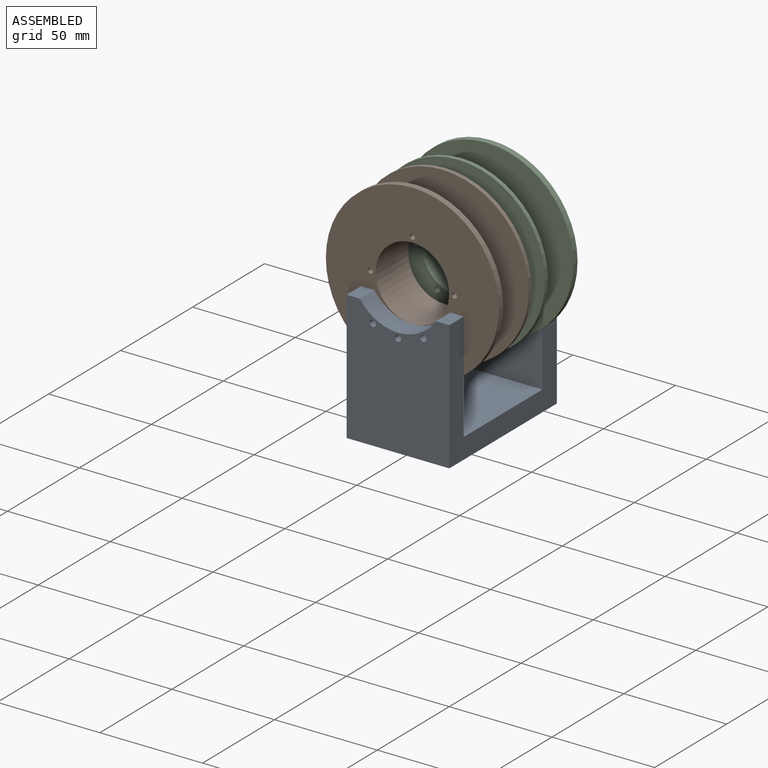
[diagram: assembled view]
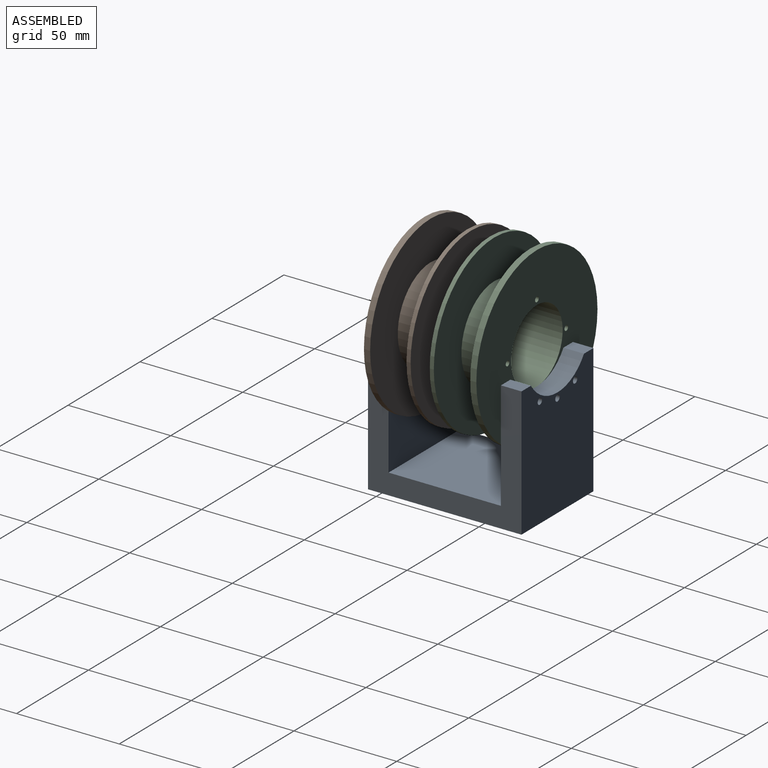
[diagram: assembled view, second angle]
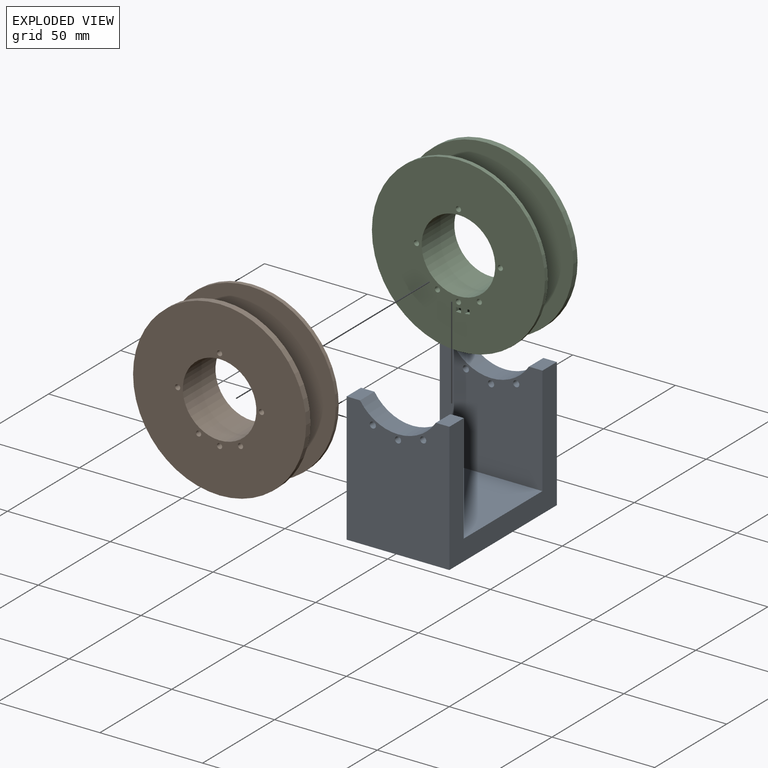
[diagram: exploded view]
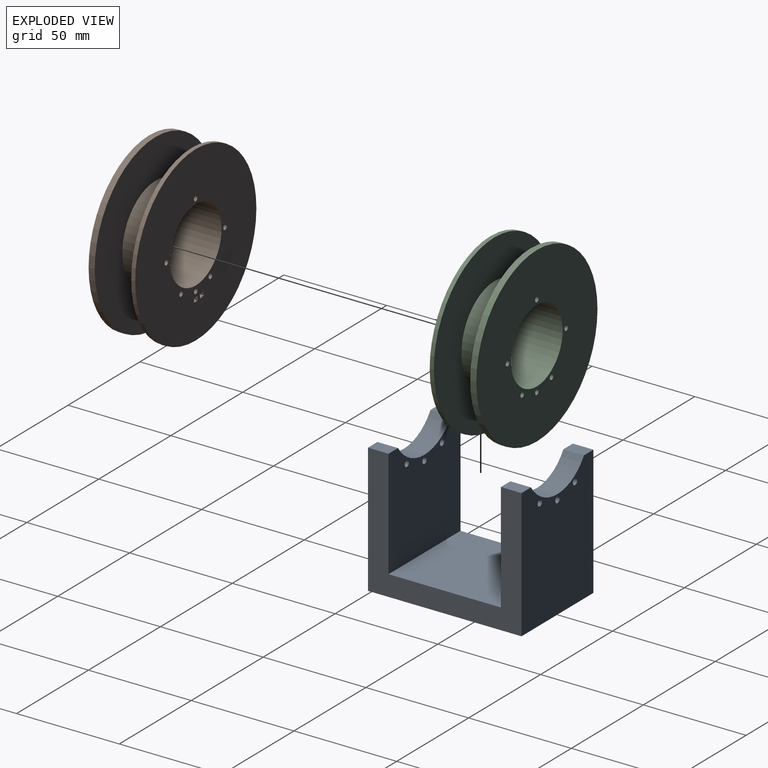
[diagram: exploded view, second angle]
ASSEMBLY  parts=3 mates=2
PART A: 20 faces, bbox 50x74.7x63 mm
  f0: cylinder r=22mm len=36.88mm, axis (0,1,0), area 437.3mm2, adj f1,f2,f7,f9
  f1: plane 63x50mm, normal (0,-1,0), area 2869mm2, adj f0,f3,f4,f5,f6,f7,f8,f9
  f2: plane 53x50mm, normal (0,1,0), area 2369mm2, adj f0,f3,f4,f5,f6,f7,f8,f9
  f3: cylinder r=1.5mm len=10mm, axis (0,1,0), area 94.2mm2, adj f1,f2
  f4: cylinder r=1.5mm len=10mm, axis (0,1,0), area 94.2mm2, adj f1,f2
  f5: cylinder r=1.5mm len=10mm, axis (0,1,0), area 94.2mm2, adj f1,f2
  f6: plane 74.7x63mm, normal (1,0,0), area 1807mm2, adj f1,f2,f7,f11,f12,f16,f18,f19
  f7: plane 10x6.56mm, normal (0,0,1), area 65.6mm2, adj f0,f1,f2,f6
  f8: plane 74.7x63mm, normal (-1,0,0), area 1807mm2, adj f1,f2,f9,f11,f12,f17,f18,f19
  f9: plane 10x6.56mm, normal (0,0,1), area 65.6mm2, adj f0,f1,f2,f8
  f10: cylinder r=22mm len=36.88mm, axis (0,-1,0), area 437.3mm2, adj f11,f12,f16,f17
  f11: plane 63x50mm, normal (0,1,0), area 2869mm2, adj f6,f8,f10,f13,f14,f15,f16,f17
  f12: plane 53x50mm, normal (0,-1,0), area 2369mm2, adj f6,f8,f10,f13,f14,f15,f16,f17
  f13: cylinder r=1.5mm len=10mm, axis (0,-1,0), area 94.2mm2, adj f11,f12
  f14: cylinder r=1.5mm len=10mm, axis (0,-1,0), area 94.2mm2, adj f11,f12
  f15: cylinder r=1.5mm len=10mm, axis (0,-1,0), area 94.2mm2, adj f11,f12
  f16: plane 10x6.56mm, normal (0,0,1), area 65.6mm2, adj f6,f10,f11,f12
  f17: plane 10x6.56mm, normal (0,0,1), area 65.6mm2, adj f8,f10,f11,f12
  f18: plane 54.7x50mm, normal (0,0,1), area 2735mm2, adj f2,f6,f8,f12
  f19: plane 74.7x50mm, normal (0,0,-1), area 3735mm2, adj f1,f6,f8,f11
PART B: 22 faces, bbox 84.2x22.7x84.2 mm
  f0: cylinder r=42.1mm len=84.2mm, axis (0,1,0), area 529mm2, adj f1,f19
  f1: plane 84.2x84.2mm, normal (0,1,0), area 4522.1mm2, adj f0,f3,f5,f6,f7,f8,f9,f10
  f2: plane 84.2x84.2mm, normal (0,-1,0), area 4532.1mm2, adj f3,f4,f5,f6,f7,f8,f9,f10
  f3: cylinder r=17.9mm len=35.8mm, axis (0,1,0), area 2553mm2, adj f1,f2
  f4: cylinder r=42.1mm len=84.2mm, axis (0,1,0), area 793.6mm2, adj f2,f21
  f5: cylinder r=1.25mm len=22.7mm, axis (0,-1,0), area 178.3mm2, adj f1,f2
  f6: cylinder r=1.25mm len=22.7mm, axis (0,-1,0), area 178.3mm2, adj f1,f2
  f7: cylinder r=1.25mm len=22.7mm, axis (0,-1,0), area 178.3mm2, adj f1,f2
  f8: cylinder r=1.25mm len=22.7mm, axis (0,-1,0), area 178.3mm2, adj f1,f2
  f9: cylinder r=1.25mm len=22.7mm, axis (0,-1,0), area 178.3mm2, adj f1,f2
  f10: cylinder r=1.25mm len=22.7mm, axis (0,-1,0), area 178.3mm2, adj f1,f2
  f11: plane 2x1.97mm, normal (-0.98,0,0.17), area 4mm2, adj f1,f12,f14,f19
  f12: plane 2.46x2mm, normal (-0.17,0,-0.98), area 5mm2, adj f1,f11,f13,f19
  f13: plane 2x1.97mm, normal (0.98,0,-0.17), area 4mm2, adj f1,f12,f14,f19
  f14: plane 2.46x2mm, normal (0.17,0,0.98), area 5mm2, adj f1,f11,f13,f19
  f15: plane 2.5x2mm, normal (0,0,-1), area 5mm2, adj f1,f16,f18,f19
  f16: plane 2x2mm, normal (1,0,0), area 4mm2, adj f1,f15,f17,f19
  f17: plane 2.5x2mm, normal (0,0,1), area 5mm2, adj f1,f16,f18,f19
  f18: plane 2x2mm, normal (-1,0,0), area 4mm2, adj f1,f15,f17,f19
  f19: plane 84.2x84.2mm, normal (0,-1,0), area 3910.7mm2, adj f0,f11,f12,f13,f14,f15,f16,f17
  f20: cylinder r=22.9mm len=45.8mm, axis (0,1,0), area 2546.8mm2, adj f19,f21
  f21: plane 84.2x84.2mm, normal (0,1,0), area 3920.7mm2, adj f4,f20
PART C: same geometry as B
PLACE A t=(4.08,-11.27,23.06)mm
PLACE B t=(4.08,-15.92,18.96)mm
PLACE C rot(axis=(0,0,1),180deg) t=(4.08,-6.62,18.96)mm
MATE pin_slot B.f6 <-> A.f3  axis (0,-1,0) through (4.08,-38.62,-1.44)mm
MATE pin_slot C.f6 <-> A.f3  axis (0,1,0) through (4.08,16.08,-1.44)mm
